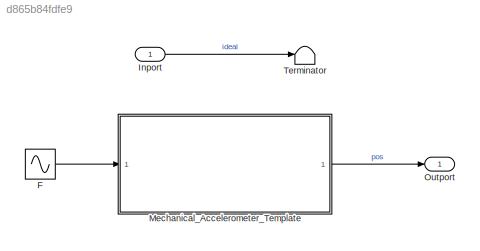
MODEL slx_d865b84fdfe9
KIND model
CONFIG AbsTol = auto
CONFIG EnableMultiTasking = off
CONFIG FixedStep = auto
CONFIG MaxStep = 0.01
CONFIG MinStep = auto
CONFIG RelTol = 1e-3
CONFIG SampleTimeConstraint = Unconstrained
CONFIG SolverName = VariableStepAuto
CONFIG StartTime = 0.0
CONFIG StopTime = 50
WORKSPACE source: mxarray member
WORKSPACE M = 10
WORKSPACE Ms = 100
WORKSPACE b = 12
WORKSPACE k = 32
BLOCK [Sin] F
  Amplitude = 3
  SampleTime = 0
BLOCK [Inport] Inport
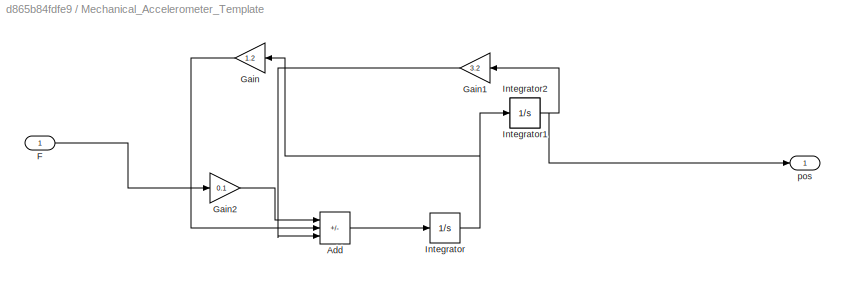
BLOCK [SubSystem] Mechanical_Accelerometer_Template
BLOCK [Sum] Mechanical_Accelerometer_Template/Add
  IconShape = rectangular
  Inputs = -++
BLOCK [Inport] Mechanical_Accelerometer_Template/F
BLOCK [Gain] Mechanical_Accelerometer_Template/Gain
  Gain = 1.2
  NameLocation = top
BLOCK [Gain] Mechanical_Accelerometer_Template/Gain1
  Gain = 3.2
  NameLocation = top
BLOCK [Gain] Mechanical_Accelerometer_Template/Gain2
  Gain = 0.1
BLOCK [Integrator] Mechanical_Accelerometer_Template/Integrator
BLOCK [Integrator] Mechanical_Accelerometer_Template/Integrator1
BLOCK [Integrator] Mechanical_Accelerometer_Template/Integrator2
BLOCK [Outport] Mechanical_Accelerometer_Template/pos
BLOCK [Outport] Outport
BLOCK [Terminator] Terminator
LINE F:1 -> Mechanical_Accelerometer_Template:1
LINE Inport:1 -> Terminator:1
LINE Mechanical_Accelerometer_Template/Add:1 -> Mechanical_Accelerometer_Template/Integrator:1
LINE Mechanical_Accelerometer_Template/F:1 -> Mechanical_Accelerometer_Template/Gain2:1
LINE Mechanical_Accelerometer_Template/Gain1:1 -> Mechanical_Accelerometer_Template/Add:3
LINE Mechanical_Accelerometer_Template/Gain2:1 -> Mechanical_Accelerometer_Template/Add:1
LINE Mechanical_Accelerometer_Template/Gain:1 -> Mechanical_Accelerometer_Template/Add:2
NET Mechanical_Accelerometer_Template/Integrator2:1 -> Mechanical_Accelerometer_Template/Gain1:1, Mechanical_Accelerometer_Template/pos:1
NET Mechanical_Accelerometer_Template/Integrator:1 -> Mechanical_Accelerometer_Template/Gain:1, Mechanical_Accelerometer_Template/Integrator2:1
LINE Mechanical_Accelerometer_Template:1 -> Outport:1
note: NET lines group one-source signal fan-out (src -> all destinations, sorted); 1:1 wires keep LINE
